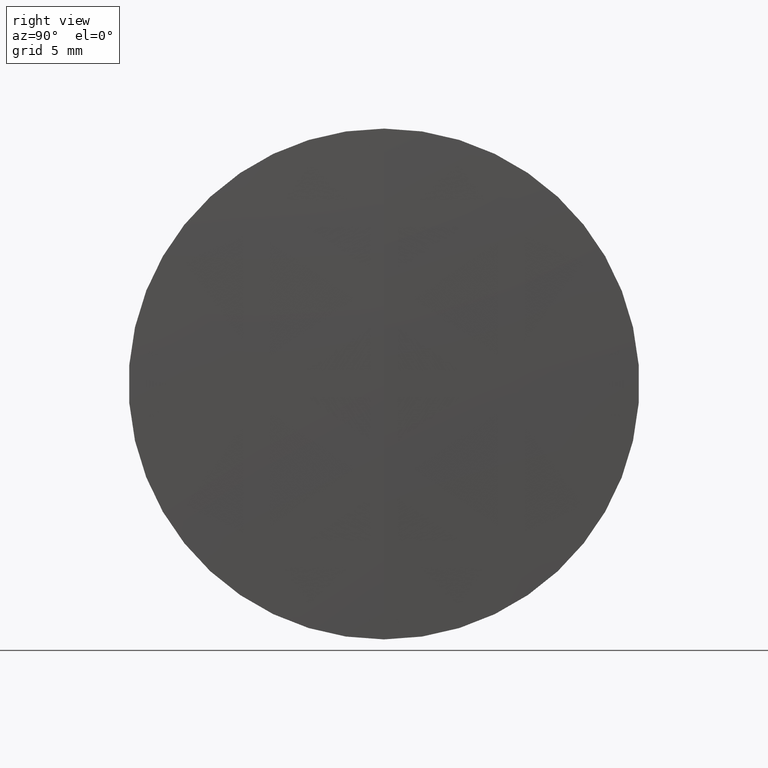
[diagram: clean part render]
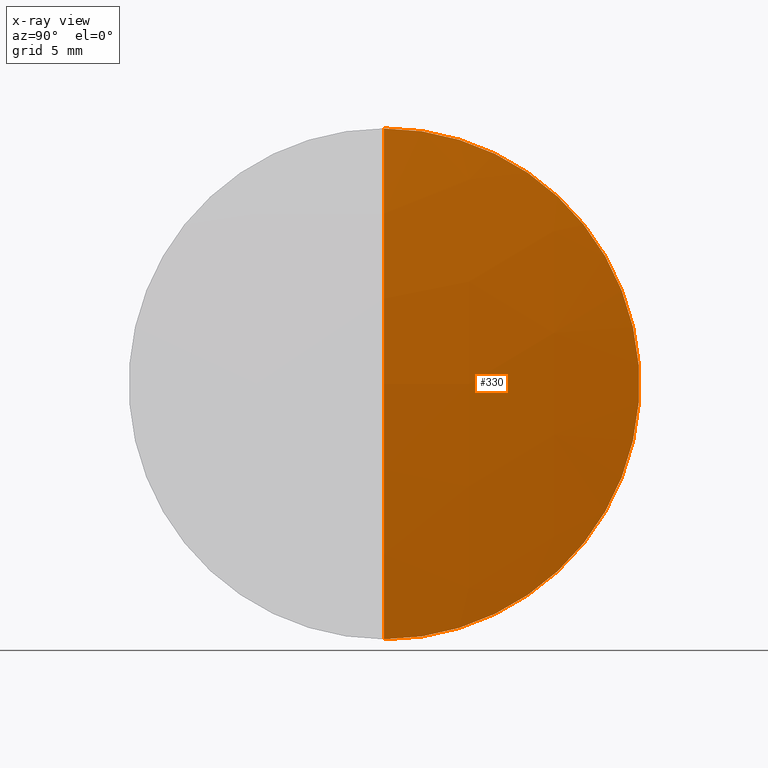
[diagram: x-ray — body ghosted, one internal face saturated and labeled with its STEP entity id]
A machine part, right view, then the same camera in x-ray: the body is ghosted and one INTERNAL B-rep face — a face not visible from any outside direction — is saturated and labeled: STEP entity #330.
In plain terms, the highlighted spherical surface has radius 111.5 mm.
Its self-contained STEP definition (entity closure, byte-faithful):
#9 = AXIS2_PLACEMENT_3D ( 'NONE', #260, #322, #71 ) ;
#17 = CARTESIAN_POINT ( 'NONE',  ( 292.3994475431023300, 0.0000000000000000000, 4.495984961892529400E-015 ) ) ;
#26 = DIRECTION ( 'NONE',  ( -0.0000000000000000000, 1.000000000000000000, 1.224646799147353200E-016 ) ) ;
#45 = EDGE_CURVE ( 'NONE', #224, #169, #256, .T. ) ;
#54 = DIRECTION ( 'NONE',  ( 0.0000000000000000000, -1.000000000000000000, 0.0000000000000000000 ) ) ;
#56 = CIRCLE ( 'NONE', #110, 111.4999999999999600 ) ;
#65 = ORIENTED_EDGE ( 'NONE', *, *, #45, .T. ) ;
#70 = CARTESIAN_POINT ( 'NONE',  ( 291.6738128087178000, 0.0000000000000000000, 12.69999999999999400 ) ) ;
#71 = DIRECTION ( 'NONE',  ( 0.0000000000000000000, 0.0000000000000000000, 1.000000000000000000 ) ) ;
#74 = AXIS2_PLACEMENT_3D ( 'NONE', #223, #26, #216 ) ;
#76 = EDGE_CURVE ( 'NONE', #262, #169, #233, .T. ) ;
#107 = EDGE_LOOP ( 'NONE', ( #121, #65, #300 ) ) ;
#110 = AXIS2_PLACEMENT_3D ( 'NONE', #343, #54, #136 ) ;
#121 = ORIENTED_EDGE ( 'NONE', *, *, #339, .F. ) ;
#125 = FACE_OUTER_BOUND ( 'NONE', #107, .T. ) ;
#136 = DIRECTION ( 'NONE',  ( 0.0000000000000000000, 0.0000000000000000000, -1.000000000000000000 ) ) ;
#159 = SPHERICAL_SURFACE ( 'NONE', #280, 111.4999999999999600 ) ;
#169 = VERTEX_POINT ( 'NONE', #250 ) ;
#185 = DIRECTION ( 'NONE',  ( 0.0000000000000000000, 0.0000000000000000000, 1.000000000000000000 ) ) ;
#216 = DIRECTION ( 'NONE',  ( 0.0000000000000000000, -1.224646799147353200E-016, 1.000000000000000000 ) ) ;
#223 = CARTESIAN_POINT ( 'NONE',  ( 180.8994475431023300, 0.0000000000000000000, -2.331420943353962200E-015 ) ) ;
#224 = VERTEX_POINT ( 'NONE', #17 ) ;
#233 = CIRCLE ( 'NONE', #9, 12.69999999999999400 ) ;
#246 = CARTESIAN_POINT ( 'NONE',  ( 180.8994475431023300, 0.0000000000000000000, -2.331420943353962200E-015 ) ) ;
#250 = CARTESIAN_POINT ( 'NONE',  ( 291.6738128087178000, 1.555301434917138000E-015, -12.69999999999999400 ) ) ;
#256 = CIRCLE ( 'NONE', #74, 111.4999999999999600 ) ;
#260 = CARTESIAN_POINT ( 'NONE',  ( 291.6738128087178000, 0.0000000000000000000, 0.0000000000000000000 ) ) ;
#262 = VERTEX_POINT ( 'NONE', #70 ) ;
#280 = AXIS2_PLACEMENT_3D ( 'NONE', #246, #317, #185 ) ;
#300 = ORIENTED_EDGE ( 'NONE', *, *, #76, .F. ) ;
#317 = DIRECTION ( 'NONE',  ( 0.0000000000000000000, 1.000000000000000000, 0.0000000000000000000 ) ) ;
#322 = DIRECTION ( 'NONE',  ( -1.000000000000000000, -0.0000000000000000000, -0.0000000000000000000 ) ) ;
#330 = ADVANCED_FACE ( 'NONE', ( #125 ), #159, .T. ) ;
#339 = EDGE_CURVE ( 'NONE', #224, #262, #56, .T. ) ;
#343 = CARTESIAN_POINT ( 'NONE',  ( 180.8994475431023300, 0.0000000000000000000, -2.331420943353962200E-015 ) ) ;